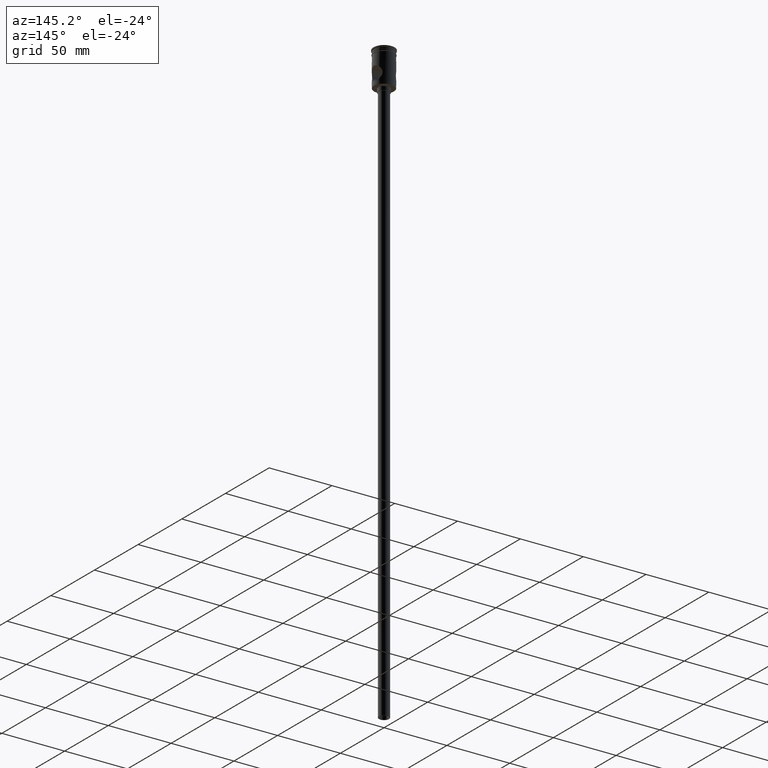
[diagram: clean part render]
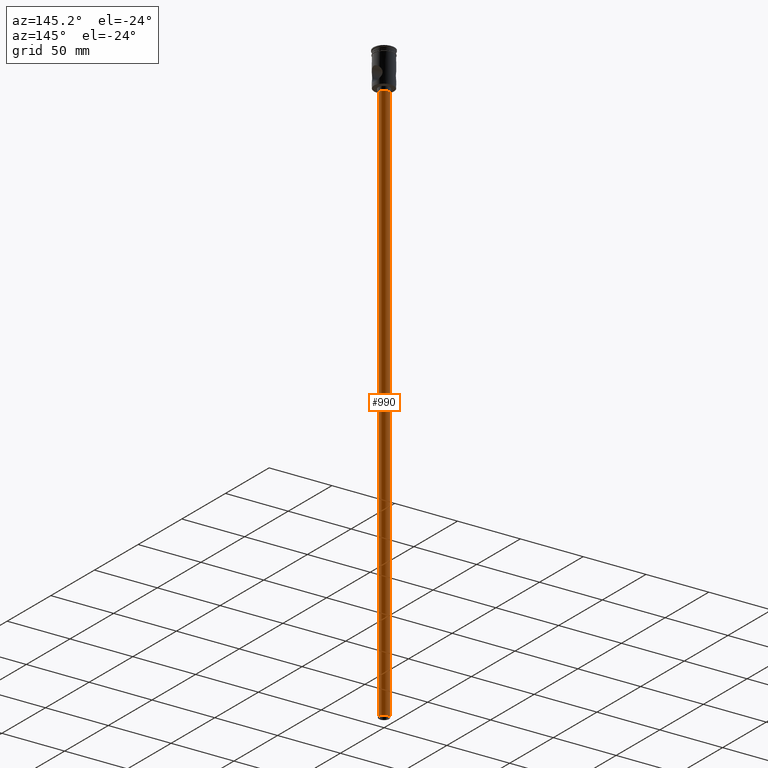
[diagram: same view with one face highlighted and labeled with its STEP entity id]
A machine part, auxiliary view. The second image highlights one B-rep face of the part: STEP entity #990.
In plain terms, the highlighted cylindrical surface (edge-blend (fillet) strip) has radius 4 mm, axis along (-0, -0, 1).
Its self-contained STEP definition (entity closure, byte-faithful):
#74 = CARTESIAN_POINT ( 'NONE',  ( 4.000000000000000000, 0.000000000000000000, -30.50000000000000000 ) ) ;
#169 = EDGE_CURVE ( 'NONE', #1222, #617, #310, .T. ) ;
#196 = VERTEX_POINT ( 'NONE', #1064 ) ;
#199 = DIRECTION ( 'NONE',  ( -0.000000000000000000, -0.000000000000000000, 1.000000000000000000 ) ) ;
#206 = CARTESIAN_POINT ( 'NONE',  ( -4.000000000000000000, 4.898587196589412829E-16, -477.5000000000000568 ) ) ;
#242 = CARTESIAN_POINT ( 'NONE',  ( 0.000000000000000000, 0.000000000000000000, -477.5000000000000568 ) ) ;
#310 = CIRCLE ( 'NONE', #944, 4.000000000000000000 ) ;
#317 = CYLINDRICAL_SURFACE ( 'NONE', #1292, 4.000000000000000000 ) ;
#366 = EDGE_CURVE ( 'NONE', #1222, #196, #535, .T. ) ;
#411 = DIRECTION ( 'NONE',  ( -0.000000000000000000, -0.000000000000000000, 1.000000000000000000 ) ) ;
#448 = CARTESIAN_POINT ( 'NONE',  ( 4.000000000000000000, 0.000000000000000000, -477.5000000000000568 ) ) ;
#505 = VECTOR ( 'NONE', #411, 1000.000000000000000 ) ;
#535 = LINE ( 'NONE', #1330, #505 ) ;
#541 = CARTESIAN_POINT ( 'NONE',  ( 0.000000000000000000, 0.000000000000000000, -30.50000000000000000 ) ) ;
#561 = FACE_OUTER_BOUND ( 'NONE', #1091, .T. ) ;
#617 = VERTEX_POINT ( 'NONE', #448 ) ;
#649 = LINE ( 'NONE', #654, #1316 ) ;
#654 = CARTESIAN_POINT ( 'NONE',  ( 4.000000000000000000, 0.000000000000000000, -477.5000000000000568 ) ) ;
#659 = CIRCLE ( 'NONE', #1197, 4.000000000000000000 ) ;
#691 = EDGE_CURVE ( 'NONE', #617, #728, #649, .T. ) ;
#710 = DIRECTION ( 'NONE',  ( 0.000000000000000000, 0.000000000000000000, -1.000000000000000000 ) ) ;
#721 = DIRECTION ( 'NONE',  ( 0.000000000000000000, 0.000000000000000000, -1.000000000000000000 ) ) ;
#728 = VERTEX_POINT ( 'NONE', #74 ) ;
#910 = DIRECTION ( 'NONE',  ( 1.000000000000000000, 0.000000000000000000, 0.000000000000000000 ) ) ;
#944 = AXIS2_PLACEMENT_3D ( 'NONE', #242, #710, #961 ) ;
#945 = ORIENTED_EDGE ( 'NONE', *, *, #366, .T. ) ;
#961 = DIRECTION ( 'NONE',  ( -1.000000000000000000, 0.000000000000000000, 0.000000000000000000 ) ) ;
#979 = ORIENTED_EDGE ( 'NONE', *, *, #1243, .T. ) ;
#990 = ADVANCED_FACE ( 'NONE', ( #561 ), #317, .T. ) ;
#1031 = CARTESIAN_POINT ( 'NONE',  ( 0.000000000000000000, 0.000000000000000000, -477.5000000000000568 ) ) ;
#1064 = CARTESIAN_POINT ( 'NONE',  ( -4.000000000000000000, 4.898587196589412829E-16, -30.50000000000000000 ) ) ;
#1091 = EDGE_LOOP ( 'NONE', ( #1206, #945, #979, #1163 ) ) ;
#1113 = DIRECTION ( 'NONE',  ( -0.000000000000000000, -0.000000000000000000, 1.000000000000000000 ) ) ;
#1163 = ORIENTED_EDGE ( 'NONE', *, *, #691, .F. ) ;
#1184 = DIRECTION ( 'NONE',  ( -1.000000000000000000, 0.000000000000000000, 0.000000000000000000 ) ) ;
#1197 = AXIS2_PLACEMENT_3D ( 'NONE', #541, #721, #1184 ) ;
#1206 = ORIENTED_EDGE ( 'NONE', *, *, #169, .F. ) ;
#1222 = VERTEX_POINT ( 'NONE', #206 ) ;
#1243 = EDGE_CURVE ( 'NONE', #196, #728, #659, .T. ) ;
#1292 = AXIS2_PLACEMENT_3D ( 'NONE', #1031, #199, #910 ) ;
#1316 = VECTOR ( 'NONE', #1113, 1000.000000000000000 ) ;
#1330 = CARTESIAN_POINT ( 'NONE',  ( -4.000000000000000000, 4.898587196589412829E-16, -477.5000000000000568 ) ) ;